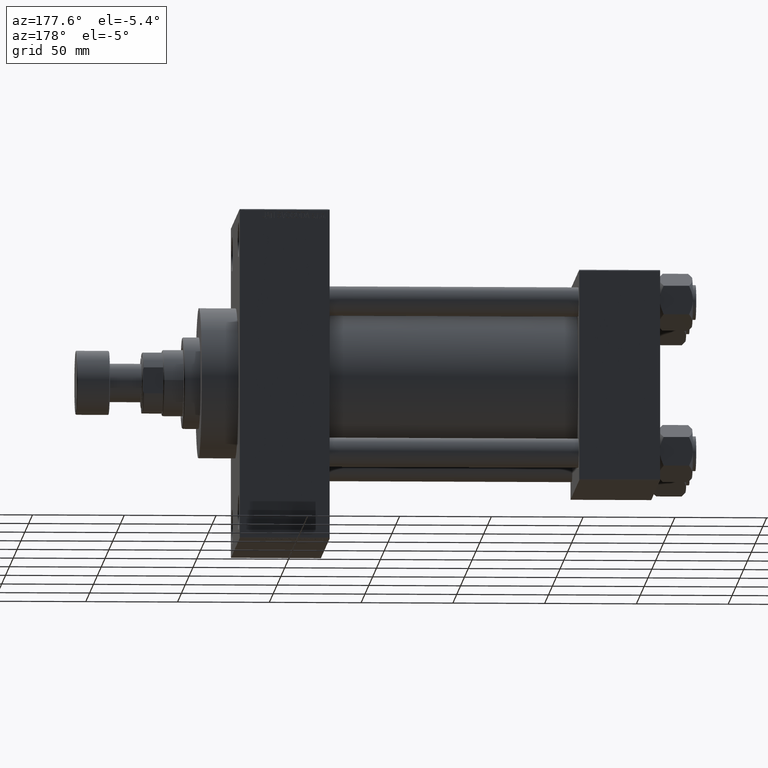
[diagram: clean part render]
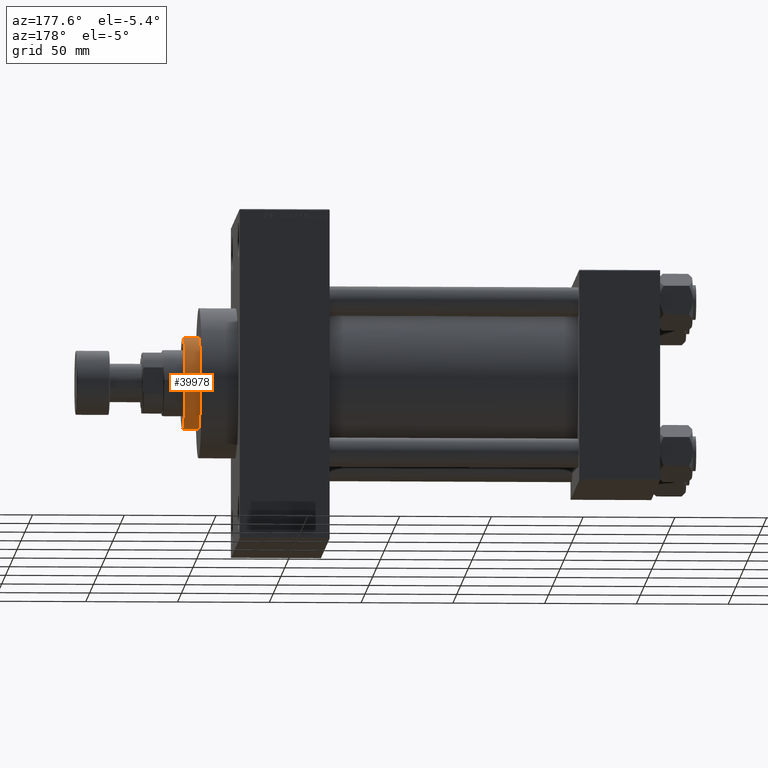
[diagram: same view with one face highlighted and labeled with its STEP entity id]
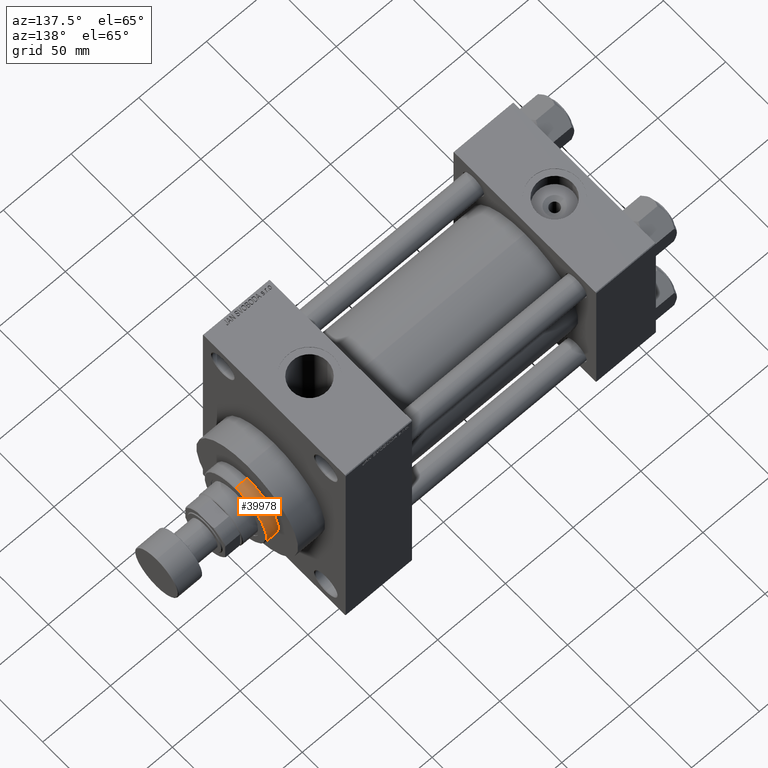
[diagram: same view with one face highlighted and labeled with its STEP entity id]
A machine part, auxiliary view. The second image highlights one B-rep face of the part: STEP entity #39978.
A second angle (auxiliary view) of the same face is appended — the face is thin or edge-on in the first view.
In plain terms, the highlighted cylindrical surface (partial cylindrical patch) has radius 25 mm, axis along (-1, -0, 0).
Its self-contained STEP definition (entity closure, byte-faithful):
#1981 = ORIENTED_EDGE ( 'NONE', *, *, #11811, .T. ) ;
#2199 = DIRECTION ( 'NONE',  ( 1.000000000000000000, 0.000000000000000000, 0.000000000000000000 ) ) ;
#3228 = AXIS2_PLACEMENT_3D ( 'NONE', #5342, #8494, #38929 ) ;
#3257 = CARTESIAN_POINT ( 'NONE',  ( 25.00000000000000000, 3.061616997868383043E-15, 51.75999999999996959 ) ) ;
#3686 = VECTOR ( 'NONE', #25013, 1000.000000000000000 ) ;
#4870 = FACE_OUTER_BOUND ( 'NONE', #17243, .T. ) ;
#5342 = CARTESIAN_POINT ( 'NONE',  ( 0.000000000000000000, 0.000000000000000000, 52.25999999999999801 ) ) ;
#6345 = CARTESIAN_POINT ( 'NONE',  ( -25.00000000000000000, 0.000000000000000000, 51.75999999999996959 ) ) ;
#6577 = ORIENTED_EDGE ( 'NONE', *, *, #12589, .F. ) ;
#6917 = VERTEX_POINT ( 'NONE', #17878 ) ;
#7546 = CIRCLE ( 'NONE', #34763, 25.00000000000000000 ) ;
#8494 = DIRECTION ( 'NONE',  ( -0.000000000000000000, -0.000000000000000000, -1.000000000000000000 ) ) ;
#11098 = EDGE_CURVE ( 'NONE', #34073, #6917, #14061, .T. ) ;
#11811 = EDGE_CURVE ( 'NONE', #38308, #34073, #7546, .T. ) ;
#12589 = EDGE_CURVE ( 'NONE', #38308, #47108, #40733, .T. ) ;
#14061 = LINE ( 'NONE', #28431, #3686 ) ;
#14924 = CARTESIAN_POINT ( 'NONE',  ( -25.00000000000000000, 0.000000000000000000, 52.25999999999999801 ) ) ;
#15336 = ORIENTED_EDGE ( 'NONE', *, *, #32975, .T. ) ;
#17243 = EDGE_LOOP ( 'NONE', ( #1981, #19022, #15336, #6577 ) ) ;
#17283 = CARTESIAN_POINT ( 'NONE',  ( 0.000000000000000000, 0.000000000000000000, 51.75999999999996959 ) ) ;
#17878 = CARTESIAN_POINT ( 'NONE',  ( 25.00000000000000000, 3.061616997868383043E-15, 43.25999999999999801 ) ) ;
#19022 = ORIENTED_EDGE ( 'NONE', *, *, #11098, .T. ) ;
#20069 = CARTESIAN_POINT ( 'NONE',  ( -25.00000000000000000, 0.000000000000000000, 43.25999999999999801 ) ) ;
#20772 = CARTESIAN_POINT ( 'NONE',  ( 0.000000000000000000, 0.000000000000000000, 43.25999999999999801 ) ) ;
#22607 = DIRECTION ( 'NONE',  ( 1.000000000000000000, 0.000000000000000000, 0.000000000000000000 ) ) ;
#25013 = DIRECTION ( 'NONE',  ( -0.000000000000000000, -0.000000000000000000, -1.000000000000000000 ) ) ;
#28431 = CARTESIAN_POINT ( 'NONE',  ( 25.00000000000000000, 3.061616997868383043E-15, 52.25999999999999801 ) ) ;
#28472 = DIRECTION ( 'NONE',  ( 0.000000000000000000, 0.000000000000000000, -1.000000000000000000 ) ) ;
#32975 = EDGE_CURVE ( 'NONE', #6917, #47108, #41932, .T. ) ;
#34073 = VERTEX_POINT ( 'NONE', #3257 ) ;
#34763 = AXIS2_PLACEMENT_3D ( 'NONE', #17283, #28472, #2199 ) ;
#35619 = DIRECTION ( 'NONE',  ( 0.000000000000000000, 0.000000000000000000, 1.000000000000000000 ) ) ;
#38308 = VERTEX_POINT ( 'NONE', #6345 ) ;
#38677 = CYLINDRICAL_SURFACE ( 'NONE', #3228, 25.00000000000000000 ) ;
#38808 = AXIS2_PLACEMENT_3D ( 'NONE', #20772, #35619, #22607 ) ;
#38929 = DIRECTION ( 'NONE',  ( -1.000000000000000000, 0.000000000000000000, 0.000000000000000000 ) ) ;
#39978 = ADVANCED_FACE ( 'NONE', ( #4870 ), #38677, .T. ) ;
#40499 = DIRECTION ( 'NONE',  ( -0.000000000000000000, -0.000000000000000000, -1.000000000000000000 ) ) ;
#40733 = LINE ( 'NONE', #14924, #43375 ) ;
#41932 = CIRCLE ( 'NONE', #38808, 25.00000000000000000 ) ;
#43375 = VECTOR ( 'NONE', #40499, 1000.000000000000000 ) ;
#47108 = VERTEX_POINT ( 'NONE', #20069 ) ;